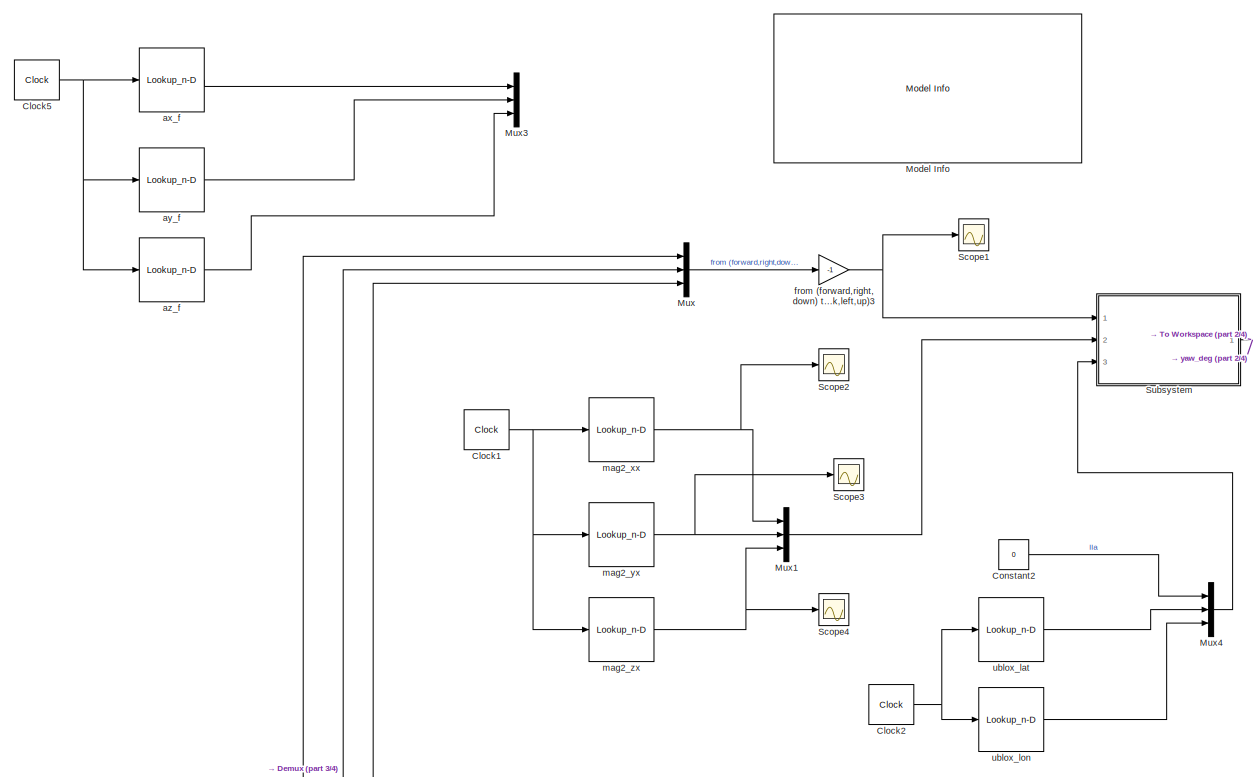
[diagram: root canvas - part 1/4, top center region]
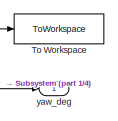
[diagram: root canvas - part 2/4, top right region]
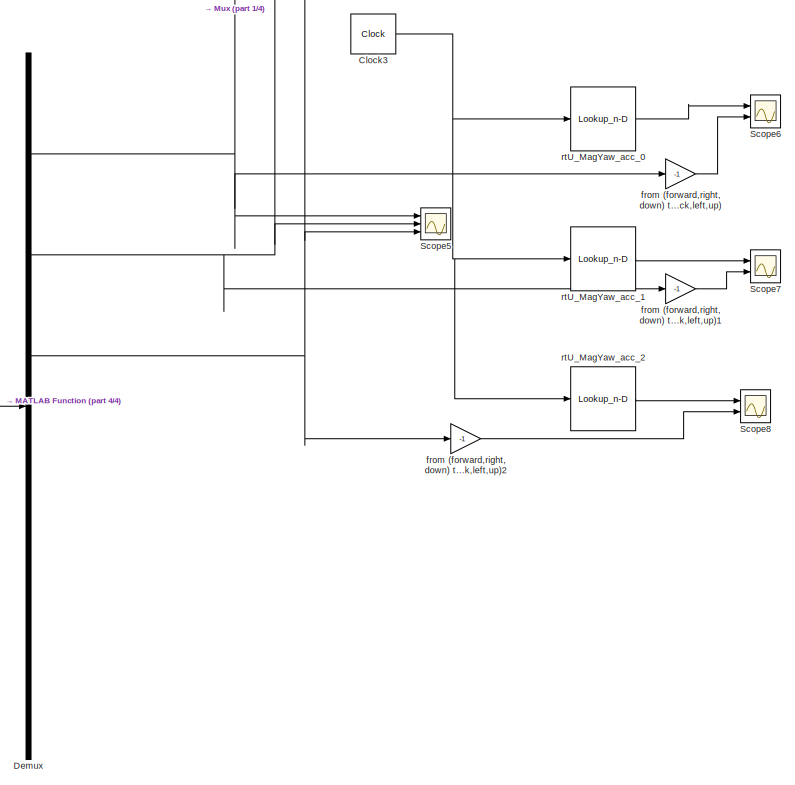
[diagram: root canvas - part 3/4, bottom center region]
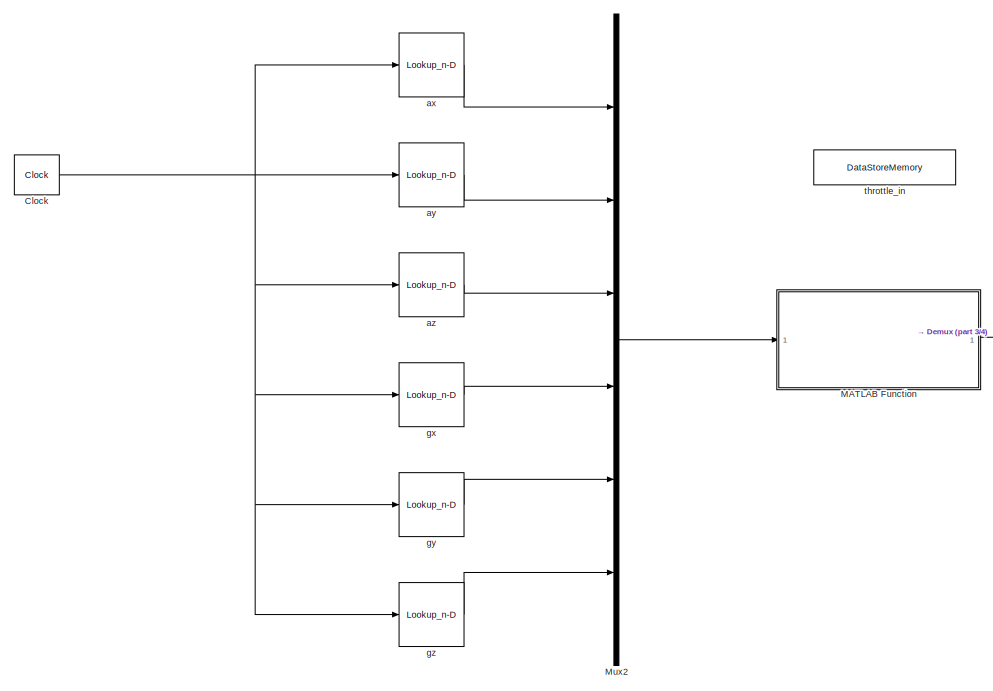
[diagram: root canvas - part 4/4, bottom left region]
MODEL slx_a02d82a56767
KIND model
CONFIG AbsTol = auto
CONFIG EnableMultiTasking = off
CONFIG FixedStep = auto
CONFIG MaxStep = auto
CONFIG MinStep = auto
CONFIG RelTol = 1e-3
CONFIG SampleTimeConstraint = Unconstrained
CONFIG Solver = FixedStepDiscrete
CONFIG SolverName = FixedStepDiscrete
CONFIG StartTime = 0.0
CONFIG StopTime = 10
BLOCK [Clock] Clock
  Decimation = 1
BLOCK [Clock] Clock1
  Decimation = 1
BLOCK [Clock] Clock2
  Decimation = 1
BLOCK [Clock] Clock3
  Decimation = 1
BLOCK [Clock] Clock5
  Decimation = 1
BLOCK [Constant] Constant2
  Value = 0
BLOCK [Demux] Demux
  DisplayOption = bar
  Outputs = 6
  Ports = [1, 6]
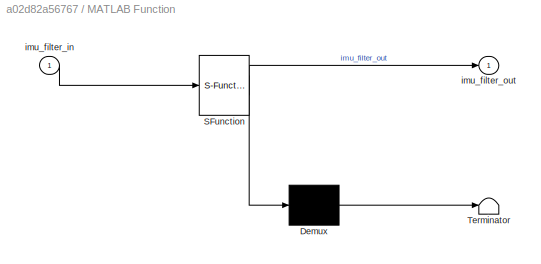
BLOCK [SubSystem] MATLAB Function
  ErrorFcn = Stateflow.Translate.translate
  PermitHierarchicalResolution = ExplicitOnly
  Ports = [1, 1]
  RequestExecContextInheritance = off
  SFBlockType = MATLAB Function
  TreatAsAtomicUnit = on
BLOCK [Demux] MATLAB Function/ Demux 
  Outputs = 1
  Ports = [1, 1]
BLOCK [S-Function] MATLAB Function/ SFunction 
  EnableBusSupport = on
  FunctionName = sf_sfun
  PortCounts = [1 2]
  Ports = [1, 2]
  SFcnIsStateOwnerBlock = off
  SFunctionDeploymentMode = off
  Tag = Stateflow S-Function 2
BLOCK [Terminator] MATLAB Function/ Terminator 
BLOCK [Inport] MATLAB Function/imu_filter_in
  IconDisplay = Port number
BLOCK [Outport] MATLAB Function/imu_filter_out
  IconDisplay = Port number
  VectorParamsAs1DForOutWhenUnconnected = off
BLOCK [Reference] Model Info  REF=simulink/Model-Wide
Utilities/Model Info
  Ports = []
  SourceBlock = simulink/Model-Wide\nUtilities/Model Info
  SourceProductBaseCode = SL
  SourceProductName = Simulink
  SourceType = CMBlock
BLOCK [Mux] Mux
  DisplayOption = bar
  Inputs = 3
  Ports = [3, 1]
BLOCK [Mux] Mux1
  DisplayOption = bar
  Inputs = 3
  Ports = [3, 1]
BLOCK [Mux] Mux2
  DisplayOption = bar
  Inputs = 6
  Ports = [6, 1]
BLOCK [Mux] Mux3
  DisplayOption = bar
  Inputs = 3
  Ports = [3, 1]
BLOCK [Mux] Mux4
  DisplayOption = bar
  Inputs = 3
  Ports = [3, 1]
BLOCK [Scope] Scope1
  Floating = off
  NumInputPorts = 1
  Ports = [1]
  ScopeSpecificationString = Simulink.scopes.TimeScopeBlockCfg('CurrentConfiguration', extmgr.ConfigurationSet(extmgr.Configuration('Core','General UI',true),extmgr.Configuration('Core','Source UI',true),extmgr.Configuration('Sources','WiredSimulink',true,'DataLoggingVariableName','ScopeData1'),extmgr.Configuration('Visuals','Time Domain',true,'SerializedDisplays',{struct('MinYLimReal','-18.8985','MaxYLimReal','41.4604','YLab...<+1532ch>
BLOCK [Scope] Scope2
  Floating = off
  NumInputPorts = 1
  Ports = [1]
  ScopeSpecificationString = Simulink.scopes.TimeScopeBlockCfg('CurrentConfiguration', extmgr.ConfigurationSet(extmgr.Configuration('Core','General UI',true),extmgr.Configuration('Core','Source UI',true),extmgr.Configuration('Sources','WiredSimulink',true,'DataLoggingVariableName','ScopeData1'),extmgr.Configuration('Visuals','Time Domain',true,'SerializedDisplays',{struct('MinYLimReal','-0.45031','MaxYLimReal','0.42242','YLab...<+1391ch>
BLOCK [Scope] Scope3
  Floating = off
  NumInputPorts = 1
  Ports = [1]
  ScopeSpecificationString = Simulink.scopes.TimeScopeBlockCfg('CurrentConfiguration', extmgr.ConfigurationSet(extmgr.Configuration('Core','General UI',true),extmgr.Configuration('Core','Source UI',true),extmgr.Configuration('Sources','WiredSimulink',true,'DataLoggingVariableName','ScopeData2'),extmgr.Configuration('Visuals','Time Domain',true,'SerializedDisplays',{struct('MinYLimReal','-0.82198','MaxYLimReal','-0.02226','YLa...<+1422ch>
BLOCK [Scope] Scope4
  Floating = off
  NumInputPorts = 1
  Ports = [1]
  ScopeSpecificationString = Simulink.scopes.TimeScopeBlockCfg('CurrentConfiguration', extmgr.ConfigurationSet(extmgr.Configuration('Core','General UI',true),extmgr.Configuration('Core','Source UI',true),extmgr.Configuration('Sources','WiredSimulink',true,'DataLoggingVariableName','ScopeData3'),extmgr.Configuration('Visuals','Time Domain',true,'SerializedDisplays',{struct('MinYLimReal','0.07096','MaxYLimReal','1.04836','YLabe...<+1393ch>
BLOCK [Scope] Scope5
  Floating = off
  NumInputPorts = 3
  Ports = [3]
  ScopeSpecificationString = Simulink.scopes.TimeScopeBlockCfg('CurrentConfiguration', extmgr.ConfigurationSet(extmgr.Configuration('Core','General UI',true),extmgr.Configuration('Core','Source UI',true),extmgr.Configuration('Sources','WiredSimulink',true,'DataLoggingVariableName','ScopeData1'),extmgr.Configuration('Visuals','Time Domain',true,'SerializedDisplays',{struct('MinYLimReal','-13.46088','MaxYLimReal','6.21469','YLa...<+1488ch>
BLOCK [Scope] Scope6
  Floating = off
  NumInputPorts = 2
  Ports = [2]
  ScopeSpecificationString = Simulink.scopes.TimeScopeBlockCfg('CurrentConfiguration', extmgr.ConfigurationSet(extmgr.Configuration('Core','General UI',true),extmgr.Configuration('Core','Source UI',true),extmgr.Configuration('Sources','WiredSimulink',true,'DataLoggingVariableName','ScopeData1'),extmgr.Configuration('Visuals','Time Domain',true,'SerializedDisplays',{struct('MinYLimReal','-16.15469','MaxYLimReal','5.2174','YLab...<+1521ch>
BLOCK [Scope] Scope7
  Floating = off
  NumInputPorts = 2
  Ports = [2]
  ScopeSpecificationString = Simulink.scopes.TimeScopeBlockCfg('CurrentConfiguration', extmgr.ConfigurationSet(extmgr.Configuration('Core','General UI',true),extmgr.Configuration('Core','Source UI',true),extmgr.Configuration('Sources','WiredSimulink',true,'DataLoggingVariableName','ScopeData2'),extmgr.Configuration('Visuals','Time Domain',true,'SerializedDisplays',{struct('MinYLimReal','-8.31668','MaxYLimReal','8.35171','YLab...<+1495ch>
BLOCK [Scope] Scope8
  Floating = off
  NumInputPorts = 2
  Ports = [2]
  ScopeSpecificationString = Simulink.scopes.TimeScopeBlockCfg('CurrentConfiguration', extmgr.ConfigurationSet(extmgr.Configuration('Core','General UI',true),extmgr.Configuration('Core','Source UI',true),extmgr.Configuration('Sources','WiredSimulink',true,'DataLoggingVariableName','ScopeData3'),extmgr.Configuration('Visuals','Time Domain',true,'SerializedDisplays',{struct('MinYLimReal','3.61819','MaxYLimReal','14.47742','YLab...<+1522ch>
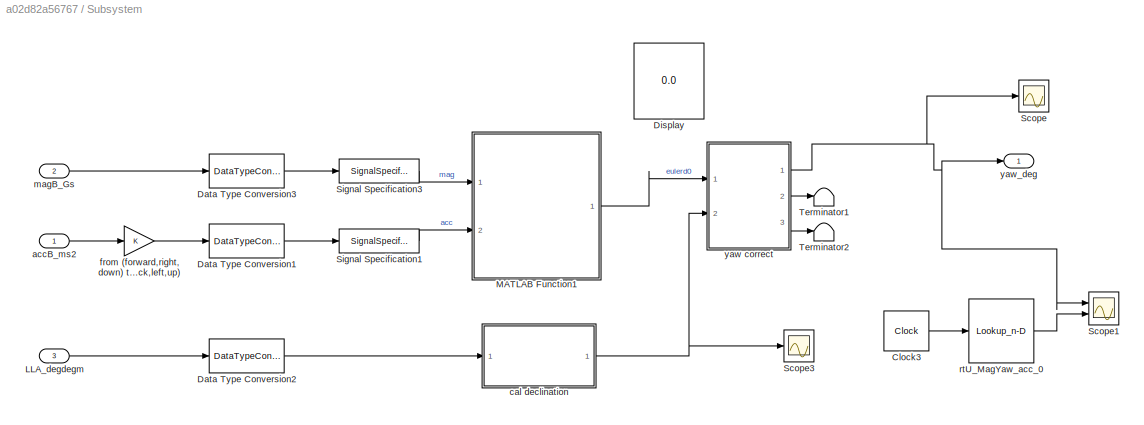
BLOCK [SubSystem] Subsystem
  Ports = [3, 1]
  RequestExecContextInheritance = off
BLOCK [Clock] Subsystem/Clock3
  Decimation = 1
BLOCK [DataTypeConversion] Subsystem/Data Type Conversion1
  OutDataTypeStr = double
  RndMeth = Floor
  SaturateOnIntegerOverflow = off
BLOCK [DataTypeConversion] Subsystem/Data Type Conversion2
  OutDataTypeStr = double
  RndMeth = Floor
  SaturateOnIntegerOverflow = off
BLOCK [DataTypeConversion] Subsystem/Data Type Conversion3
  OutDataTypeStr = double
  RndMeth = Floor
  SaturateOnIntegerOverflow = off
BLOCK [Display] Subsystem/Display
  Decimation = 1
  Ports = [1]
BLOCK [Inport] Subsystem/LLA_degdegm
  IconDisplay = Port number
  Port = 3
  PortDimensions = [1,3]
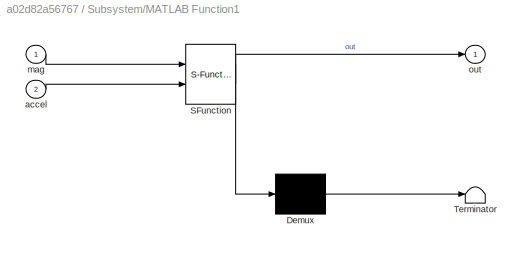
BLOCK [SubSystem] Subsystem/MATLAB Function1
  ErrorFcn = Stateflow.Translate.translate
  PermitHierarchicalResolution = ExplicitOnly
  Ports = [2, 1]
  RequestExecContextInheritance = off
  SFBlockType = MATLAB Function
  TreatAsAtomicUnit = on
BLOCK [Demux] Subsystem/MATLAB Function1/ Demux 
  Outputs = 1
  Ports = [1, 1]
BLOCK [S-Function] Subsystem/MATLAB Function1/ SFunction 
  EnableBusSupport = on
  FunctionName = sf_sfun
  PortCounts = [2 2]
  Ports = [2, 2]
  SFcnIsStateOwnerBlock = off
  SFunctionDeploymentMode = off
  Tag = Stateflow S-Function 4
BLOCK [Terminator] Subsystem/MATLAB Function1/ Terminator 
BLOCK [Inport] Subsystem/MATLAB Function1/accel
  IconDisplay = Port number
  Port = 2
BLOCK [Inport] Subsystem/MATLAB Function1/mag
  IconDisplay = Port number
BLOCK [Outport] Subsystem/MATLAB Function1/out
  IconDisplay = Port number
BLOCK [Scope] Subsystem/Scope
  Floating = off
  NumInputPorts = 1
  Ports = [1]
  ScopeSpecificationString = Simulink.scopes.TimeScopeBlockCfg('CurrentConfiguration', extmgr.ConfigurationSet(extmgr.Configuration('Core','General UI',true),extmgr.Configuration('Core','Source UI',true),extmgr.Configuration('Sources','WiredSimulink',true),extmgr.Configuration('Visuals','Time Domain',true,'SerializedDisplays',{struct('MinYLimReal','-184.58752','MaxYLimReal','-76.55954','YLabelReal','','MinYLimMag',' 0.00000',...<+1420ch>
BLOCK [Scope] Subsystem/Scope1
  Floating = off
  NumInputPorts = 2
  Ports = [2]
  ScopeSpecificationString = Simulink.scopes.TimeScopeBlockCfg('CurrentConfiguration', extmgr.ConfigurationSet(extmgr.Configuration('Core','General UI',true),extmgr.Configuration('Core','Source UI',true),extmgr.Configuration('Sources','WiredSimulink',true,'DataLoggingVariableName','ScopeData4'),extmgr.Configuration('Visuals','Time Domain',true,'SerializedDisplays',{struct('MinYLimReal','37.29122','MaxYLimReal','188.95066','YL...<+1474ch>
BLOCK [Scope] Subsystem/Scope3
  Floating = off
  NumInputPorts = 1
  Ports = [1]
  ScopeSpecificationString = Simulink.scopes.TimeScopeBlockCfg('CurrentConfiguration', extmgr.ConfigurationSet(extmgr.Configuration('Core','General UI',true),extmgr.Configuration('Core','Source UI',true),extmgr.Configuration('Sources','WiredSimulink',true,'DataLoggingVariableName','ScopeData1'),extmgr.Configuration('Visuals','Time Domain',true,'SerializedDisplays',{struct('MinYLimReal','-4.5043474','MaxYLimReal','-4.50434','Y...<+1459ch>
BLOCK [SignalSpecification] Subsystem/Signal Specification1
  Dimensions = [1,3]
BLOCK [SignalSpecification] Subsystem/Signal Specification3
  Dimensions = [1,3]
BLOCK [Terminator] Subsystem/Terminator1
BLOCK [Terminator] Subsystem/Terminator2
BLOCK [Inport] Subsystem/accB_ms2
  IconDisplay = Port number
  PortDimensions = [1,3]
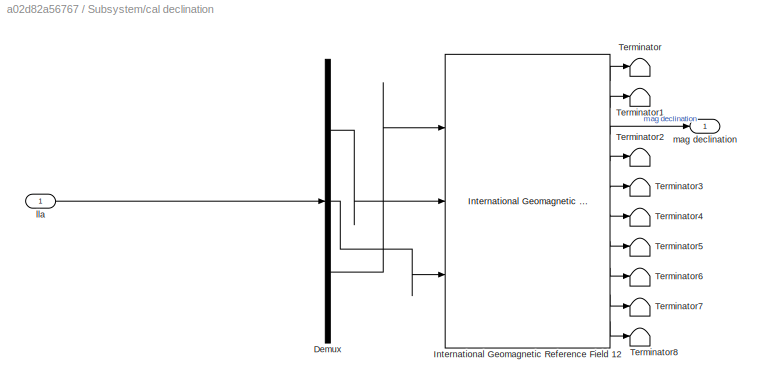
BLOCK [SubSystem] Subsystem/cal declination
  Ports = [1, 1]
  RequestExecContextInheritance = off
BLOCK [Demux] Subsystem/cal declination/Demux
  DisplayOption = bar
  Outputs = 3
  Ports = [1, 3]
BLOCK [Reference] Subsystem/cal declination/International Geomagnetic Reference Field 12  REF=aerolibgravity2/International Geomagnetic Reference Field 12
  Ports = [3, 10]
  SourceBlock = aerolibgravity2/International Geomagnetic Reference Field 12
  SourceProductBaseCode = AE
  SourceProductName = Aerospace Blockset
  SourceType = InternationalGeomagneticReferenceField12
BLOCK [Terminator] Subsystem/cal declination/Terminator
BLOCK [Terminator] Subsystem/cal declination/Terminator1
BLOCK [Terminator] Subsystem/cal declination/Terminator2
BLOCK [Terminator] Subsystem/cal declination/Terminator3
BLOCK [Terminator] Subsystem/cal declination/Terminator4
BLOCK [Terminator] Subsystem/cal declination/Terminator5
BLOCK [Terminator] Subsystem/cal declination/Terminator6
BLOCK [Terminator] Subsystem/cal declination/Terminator7
BLOCK [Terminator] Subsystem/cal declination/Terminator8
BLOCK [Inport] Subsystem/cal declination/lla
  IconDisplay = Port number
BLOCK [Outport] Subsystem/cal declination/mag declination
  IconDisplay = Port number
BLOCK [Gain] Subsystem/from (forward,right,down) to (back,left,up)
  OutDataTypeStr = Inherit: Inherit via internal rule
  ParamDataTypeStr = Inherit: Inherit via internal rule
  SaturateOnIntegerOverflow = off
BLOCK [Inport] Subsystem/magB_Gs
  IconDisplay = Port number
  Port = 2
  PortDimensions = [1,3]
BLOCK [Lookup_n-D] Subsystem/rtU_MagYaw_acc_0
  BreakpointsForDimension1 = time_mag_yaw
  InternalRulePriority = Speed
  NumberOfTableDimensions = 1
  Ports = [1, 1]
  RndMeth = Simplest
  Table = rtU_MagYaw_out
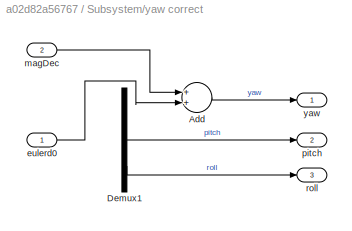
BLOCK [SubSystem] Subsystem/yaw correct
  Ports = [2, 3]
  RequestExecContextInheritance = off
BLOCK [Sum] Subsystem/yaw correct/Add
  InputSameDT = off
  OutDataTypeStr = Inherit: Inherit via internal rule
  Ports = [2, 1]
  SaturateOnIntegerOverflow = off
BLOCK [Demux] Subsystem/yaw correct/Demux1
  DisplayOption = bar
  Outputs = 3
  Ports = [1, 3]
BLOCK [Inport] Subsystem/yaw correct/eulerd0
  IconDisplay = Port number
BLOCK [Inport] Subsystem/yaw correct/magDec
  IconDisplay = Port number
  Port = 2
BLOCK [Outport] Subsystem/yaw correct/pitch
  IconDisplay = Port number
  Port = 2
BLOCK [Outport] Subsystem/yaw correct/roll
  IconDisplay = Port number
  Port = 3
BLOCK [Outport] Subsystem/yaw correct/yaw
  IconDisplay = Port number
BLOCK [Outport] Subsystem/yaw_deg
  IconDisplay = Port number
BLOCK [ToWorkspace] To Workspace
  FixptAsFi = on
  MaxDataPoints = inf
  Ports = [1]
  SampleTime = -1
  VariableName = MAG_YAW
BLOCK [Lookup_n-D] ax
  BreakpointsForDimension1 = time_imu
  InternalRulePriority = Speed
  NumberOfTableDimensions = 1
  Ports = [1, 1]
  RndMeth = Simplest
  Table = ax
BLOCK [Lookup_n-D] ax_f
  BreakpointsForDimension1 = time_algo
  InternalRulePriority = Speed
  NumberOfTableDimensions = 1
  Ports = [1, 1]
  RndMeth = Simplest
  Table = ax_f
BLOCK [Lookup_n-D] ay
  BreakpointsForDimension1 = time_imu
  InternalRulePriority = Speed
  NumberOfTableDimensions = 1
  Ports = [1, 1]
  RndMeth = Simplest
  Table = ay
BLOCK [Lookup_n-D] ay_f
  BreakpointsForDimension1 = time_algo
  InternalRulePriority = Speed
  NumberOfTableDimensions = 1
  Ports = [1, 1]
  RndMeth = Simplest
  Table = ay_f
BLOCK [Lookup_n-D] az
  BreakpointsForDimension1 = time_imu
  InternalRulePriority = Speed
  NumberOfTableDimensions = 1
  Ports = [1, 1]
  RndMeth = Simplest
  Table = az
BLOCK [Lookup_n-D] az_f
  BreakpointsForDimension1 = time_algo
  InternalRulePriority = Speed
  NumberOfTableDimensions = 1
  Ports = [1, 1]
  RndMeth = Simplest
  Table = az_f
BLOCK [Gain] from (forward,right,down) to (back,left,up)
  Gain = -1
  OutDataTypeStr = Inherit: Inherit via internal rule
  ParamDataTypeStr = Inherit: Inherit via internal rule
  SaturateOnIntegerOverflow = off
BLOCK [Gain] from (forward,right,down) to (back,left,up)1
  Gain = -1
  OutDataTypeStr = Inherit: Inherit via internal rule
  ParamDataTypeStr = Inherit: Inherit via internal rule
  SaturateOnIntegerOverflow = off
BLOCK [Gain] from (forward,right,down) to (back,left,up)2
  Gain = -1
  OutDataTypeStr = Inherit: Inherit via internal rule
  ParamDataTypeStr = Inherit: Inherit via internal rule
  SaturateOnIntegerOverflow = off
BLOCK [Gain] from (forward,right,down) to (back,left,up)3
  Gain = -1
  OutDataTypeStr = Inherit: Inherit via internal rule
  ParamDataTypeStr = Inherit: Inherit via internal rule
  SaturateOnIntegerOverflow = off
BLOCK [Lookup_n-D] gx
  BreakpointsForDimension1 = time_imu
  InternalRulePriority = Speed
  NumberOfTableDimensions = 1
  Ports = [1, 1]
  RndMeth = Simplest
  Table = gx
BLOCK [Lookup_n-D] gy
  BreakpointsForDimension1 = time_imu
  InternalRulePriority = Speed
  NumberOfTableDimensions = 1
  Ports = [1, 1]
  RndMeth = Simplest
  Table = gy
BLOCK [Lookup_n-D] gz
  BreakpointsForDimension1 = time_imu
  InternalRulePriority = Speed
  NumberOfTableDimensions = 1
  Ports = [1, 1]
  RndMeth = Simplest
  Table = gz
BLOCK [Lookup_n-D] mag2_xx
  BreakpointsForDimension1 = time_mag
  InternalRulePriority = Speed
  NumberOfTableDimensions = 1
  Ports = [1, 1]
  RndMeth = Simplest
  Table = mag2_xx
BLOCK [Lookup_n-D] mag2_yx
  BreakpointsForDimension1 = time_mag
  InternalRulePriority = Speed
  NumberOfTableDimensions = 1
  Ports = [1, 1]
  RndMeth = Simplest
  Table = mag2_yx
BLOCK [Lookup_n-D] mag2_zx
  BreakpointsForDimension1 = time_mag
  InternalRulePriority = Speed
  NumberOfTableDimensions = 1
  Ports = [1, 1]
  RndMeth = Simplest
  Table = mag2_zx
BLOCK [Lookup_n-D] rtU_MagYaw_acc_0
  BreakpointsForDimension1 = time_mag_yaw
  InternalRulePriority = Speed
  NumberOfTableDimensions = 1
  Ports = [1, 1]
  RndMeth = Simplest
  Table = rtU_MagYaw_acc_0
BLOCK [Lookup_n-D] rtU_MagYaw_acc_1
  BreakpointsForDimension1 = time_mag_yaw
  InternalRulePriority = Speed
  NumberOfTableDimensions = 1
  Ports = [1, 1]
  RndMeth = Simplest
  Table = rtU_MagYaw_acc_1
BLOCK [Lookup_n-D] rtU_MagYaw_acc_2
  BreakpointsForDimension1 = time_mag_yaw
  InternalRulePriority = Speed
  NumberOfTableDimensions = 1
  Ports = [1, 1]
  RndMeth = Simplest
  Table = rtU_MagYaw_acc_2
BLOCK [DataStoreMemory] throttle_in
  DataStoreName = imu_filt
  InitialValue = imu_filt
  OutDataTypeStr = double
  ReadBeforeWriteMsg = warning
  ShowAdditionalParam = off
  SignalType = real
  VectorParams1D = off
  WriteAfterReadMsg = warning
  WriteAfterWriteMsg = warning
BLOCK [Lookup_n-D] ublox_lat
  BreakpointsForDimension1 = time_ublox
  InternalRulePriority = Speed
  NumberOfTableDimensions = 1
  Ports = [1, 1]
  RndMeth = Simplest
  Table = ublox_lat
BLOCK [Lookup_n-D] ublox_lon
  BreakpointsForDimension1 = time_ublox
  InternalRulePriority = Speed
  NumberOfTableDimensions = 1
  Ports = [1, 1]
  RndMeth = Simplest
  Table = ublox_lon
BLOCK [Outport] yaw_deg
  IconDisplay = Port number
NET Clock1:1 -> mag2_xx:1, mag2_yx:1, mag2_zx:1
NET Clock2:1 -> ublox_lat:1, ublox_lon:1
NET Clock3:1 -> rtU_MagYaw_acc_0:1, rtU_MagYaw_acc_1:1, rtU_MagYaw_acc_2:1
NET Clock5:1 -> ax_f:1, ay_f:1, az_f:1
NET Clock:1 -> ax:1, ay:1, az:1, gx:1, gy:1, gz:1
LINE Constant2:1 -> Mux4:1
NET Demux:1 -> Mux:1, Scope5:1, from (forward,right,down) to (back,left,up):1
NET Demux:2 -> Mux:2, Scope5:2, from (forward,right,down) to (back,left,up)1:1
NET Demux:3 -> Mux:3, Scope5:3, from (forward,right,down) to (back,left,up)2:1
LINE MATLAB Function:1 -> Demux:1
LINE Mux1:1 -> Subsystem:2
LINE Mux2:1 -> MATLAB Function:1
LINE Mux4:1 -> Subsystem:3
LINE Mux:1 -> from (forward,right,down) to (back,left,up)3:1
LINE Subsystem/Clock3:1 -> Subsystem/rtU_MagYaw_acc_0:1
LINE Subsystem/Data Type Conversion1:1 -> Subsystem/Signal Specification1:1
LINE Subsystem/Data Type Conversion2:1 -> Subsystem/cal declination:1
LINE Subsystem/Data Type Conversion3:1 -> Subsystem/Signal Specification3:1
LINE Subsystem/LLA_degdegm:1 -> Subsystem/Data Type Conversion2:1
LINE Subsystem/MATLAB Function1:1 -> Subsystem/yaw correct:1
LINE Subsystem/Signal Specification1:1 -> Subsystem/MATLAB Function1:2
LINE Subsystem/Signal Specification3:1 -> Subsystem/MATLAB Function1:1
LINE Subsystem/accB_ms2:1 -> Subsystem/from (forward,right,down) to (back,left,up):1
LINE Subsystem/cal declination/Demux:1 -> Subsystem/cal declination/International Geomagnetic Reference Field 12:2
LINE Subsystem/cal declination/Demux:2 -> Subsystem/cal declination/International Geomagnetic Reference Field 12:3
LINE Subsystem/cal declination/Demux:3 -> Subsystem/cal declination/International Geomagnetic Reference Field 12:1
LINE Subsystem/cal declination/International Geomagnetic Reference Field 12:1 -> Subsystem/cal declination/Terminator:1
LINE Subsystem/cal declination/International Geomagnetic Reference Field 12:10 -> Subsystem/cal declination/Terminator8:1
LINE Subsystem/cal declination/International Geomagnetic Reference Field 12:2 -> Subsystem/cal declination/Terminator1:1
LINE Subsystem/cal declination/International Geomagnetic Reference Field 12:3 -> Subsystem/cal declination/mag declination:1
LINE Subsystem/cal declination/International Geomagnetic Reference Field 12:4 -> Subsystem/cal declination/Terminator2:1
LINE Subsystem/cal declination/International Geomagnetic Reference Field 12:5 -> Subsystem/cal declination/Terminator3:1
LINE Subsystem/cal declination/International Geomagnetic Reference Field 12:6 -> Subsystem/cal declination/Terminator4:1
LINE Subsystem/cal declination/International Geomagnetic Reference Field 12:7 -> Subsystem/cal declination/Terminator5:1
LINE Subsystem/cal declination/International Geomagnetic Reference Field 12:8 -> Subsystem/cal declination/Terminator6:1
LINE Subsystem/cal declination/International Geomagnetic Reference Field 12:9 -> Subsystem/cal declination/Terminator7:1
LINE Subsystem/cal declination/lla:1 -> Subsystem/cal declination/Demux:1
NET Subsystem/cal declination:1 -> Subsystem/Scope3:1, Subsystem/yaw correct:2
LINE Subsystem/from (forward,right,down) to (back,left,up):1 -> Subsystem/Data Type Conversion1:1
LINE Subsystem/magB_Gs:1 -> Subsystem/Data Type Conversion3:1
LINE Subsystem/rtU_MagYaw_acc_0:1 -> Subsystem/Scope1:2
LINE Subsystem/yaw correct/Add:1 -> Subsystem/yaw correct/yaw:1
LINE Subsystem/yaw correct/Demux1:2 -> Subsystem/yaw correct/pitch:1
LINE Subsystem/yaw correct/Demux1:3 -> Subsystem/yaw correct/roll:1
LINE Subsystem/yaw correct/eulerd0:1 -> Subsystem/yaw correct/Add:2
LINE Subsystem/yaw correct/magDec:1 -> Subsystem/yaw correct/Add:1
NET Subsystem/yaw correct:1 -> Subsystem/Scope1:1, Subsystem/Scope:1, Subsystem/yaw_deg:1
LINE Subsystem/yaw correct:2 -> Subsystem/Terminator1:1
LINE Subsystem/yaw correct:3 -> Subsystem/Terminator2:1
NET Subsystem:1 -> To Workspace:1, yaw_deg:1
LINE ax:1 -> Mux2:1
LINE ax_f:1 -> Mux3:1
LINE ay:1 -> Mux2:2
LINE ay_f:1 -> Mux3:2
LINE az:1 -> Mux2:3
LINE az_f:1 -> Mux3:3
LINE from (forward,right,down) to (back,left,up)1:1 -> Scope7:2
LINE from (forward,right,down) to (back,left,up)2:1 -> Scope8:2
NET from (forward,right,down) to (back,left,up)3:1 -> Scope1:1, Subsystem:1
LINE from (forward,right,down) to (back,left,up):1 -> Scope6:2
LINE gx:1 -> Mux2:4
LINE gy:1 -> Mux2:5
LINE gz:1 -> Mux2:6
NET mag2_xx:1 -> Mux1:1, Scope2:1
NET mag2_yx:1 -> Mux1:2, Scope3:1
NET mag2_zx:1 -> Mux1:3, Scope4:1
LINE rtU_MagYaw_acc_0:1 -> Scope6:1
LINE rtU_MagYaw_acc_1:1 -> Scope7:1
LINE rtU_MagYaw_acc_2:1 -> Scope8:1
LINE ublox_lat:1 -> Mux4:2
LINE ublox_lon:1 -> Mux4:3
note: NET lines group one-source signal fan-out (src -> all destinations, sorted); 1:1 wires keep LINE
CHART MATLAB Function states=1 transitions=1
  STATE_LABEL 'eML_blk_kernel()'
  STATE_LABEL 'SCRIPT:\nfunction imu_filter_out = imu_filter(imu_filter_in)\n% ftz.num{1:end}\n% ftz.den{1:end}\n% persistent\npersistent imu_filter_temp\npersistent dt\nglobal imu_filt\n    if isempty(imu_filter_temp)\n        imu_filter_temp = zeros(6,1);\n    end\n    \n   if isempty(dt)\n        dt = 0.004;\n    end\n\n  rc=1/(2*pi*imu_filt);\n  alpha=dt/(dt+rc);\n  imu_filter_temp=imu_filter_temp+(imu_filter_in-imu_filter_te...<+903ch>'
CHART Subsystem/MATLAB Function1 states=1 transitions=1
  STATE_LABEL 'eML_blk_kernel()'
  STATE_LABEL "SCRIPT:\nfunction out  = compass(mag,accel)\n    quat0 = zeros(1,4);\n    eulerd0 = zeros(1,3);\n    temp=ecompass(accel,mag);\n    quat0 = compact(temp);\n%      eulerd0 = eulerd(quat0);\n     eulerd0 = to_euler(quat0);\n    out=eulerd0(3);\n    \n    \n%     out=atan2(mag(2),mag(1));\n%     if out<-0\n%     out=out+2*pi;\n%     end\n    out=out*180/pi;\nend\n\n\nfunction eout = eulerd(quat)\n% rotate 'ZYX'\nqa = qua...<+717ch>"
